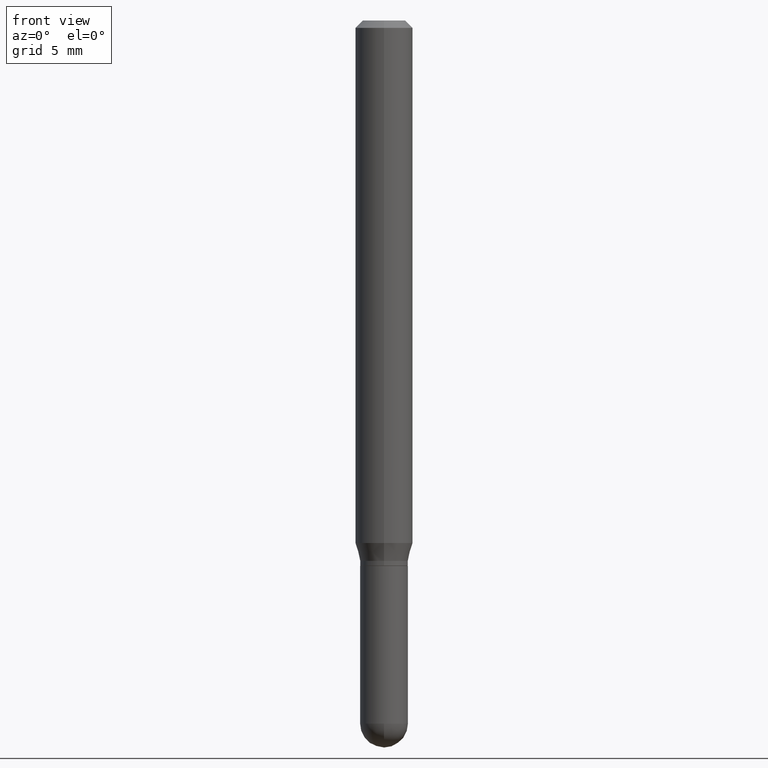
[diagram: clean part render]
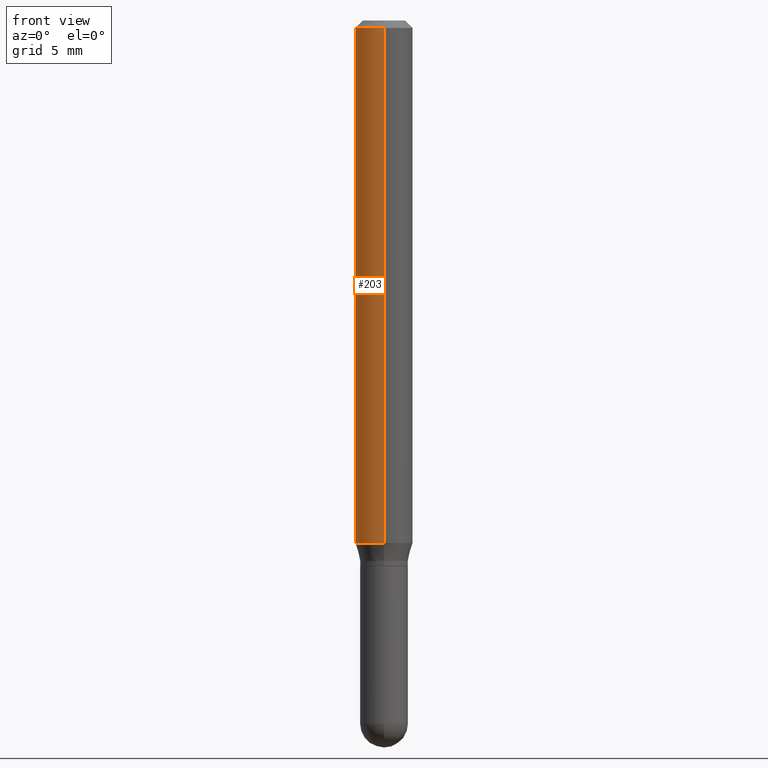
[diagram: same view with one face highlighted and labeled with its STEP entity id]
A machine part, front view. The second image highlights one B-rep face of the part: STEP entity #203.
In plain terms, the highlighted cylindrical surface (edge-blend (fillet) strip) has radius 1.4999 mm, axis along (-0, 0, 1).
Its self-contained STEP definition (entity closure, byte-faithful):
#5 = AXIS2_PLACEMENT_3D ( 'NONE', #15, #334, #19 ) ;
#15 = CARTESIAN_POINT ( 'NONE',  ( 0.000000000000000000, 0.000000000000000000, 0.000000000000000000 ) ) ;
#16 = CIRCLE ( 'NONE', #159, 0.05904999999999999832 ) ;
#19 = DIRECTION ( 'NONE',  ( -6.982962677686265922E-15, -1.000000000000000000, 3.492283521223846478E-15 ) ) ;
#27 = ORIENTED_EDGE ( 'NONE', *, *, #301, .F. ) ;
#35 = CARTESIAN_POINT ( 'NONE',  ( 4.195754854663652789E-16, 0.05904999999999623744, -1.075339299545447380 ) ) ;
#37 = DIRECTION ( 'NONE',  ( -6.982962677686265922E-15, -1.000000000000000000, 4.626330217890369336E-15 ) ) ;
#56 = CARTESIAN_POINT ( 'NONE',  ( -4.123439461173478031E-16, -0.05905000000000376614, -1.075339299545447158 ) ) ;
#107 = CARTESIAN_POINT ( 'NONE',  ( -4.123439461173740327E-16, -0.05905000000000000526, 2.062193419282681496E-16 ) ) ;
#135 = CARTESIAN_POINT ( 'NONE',  ( 3.667362967833886328E-31, -5.238425281835698892E-17, -0.01499999999999979995 ) ) ;
#139 = AXIS2_PLACEMENT_3D ( 'NONE', #135, #244, #448 ) ;
#159 = AXIS2_PLACEMENT_3D ( 'NONE', #232, #459, #37 ) ;
#177 = VERTEX_POINT ( 'NONE', #292 ) ;
#178 = EDGE_LOOP ( 'NONE', ( #201, #231, #443, #27 ) ) ;
#201 = ORIENTED_EDGE ( 'NONE', *, *, #455, .F. ) ;
#203 = ADVANCED_FACE ( 'NONE', ( #488 ), #374, .T. ) ;
#228 = DIRECTION ( 'NONE',  ( -2.444908645222623477E-29, 3.492283521223846084E-15, 1.000000000000000000 ) ) ;
#231 = ORIENTED_EDGE ( 'NONE', *, *, #401, .T. ) ;
#232 = CARTESIAN_POINT ( 'NONE',  ( 2.629106350006304297E-29, -3.755389715526958811E-15, -1.075339299545447158 ) ) ;
#244 = DIRECTION ( 'NONE',  ( -2.444908645222623477E-29, 3.492283521223846478E-15, 1.000000000000000000 ) ) ;
#262 = CARTESIAN_POINT ( 'NONE',  ( -4.123439461173737369E-16, -0.05905000000000006771, -0.01499999999999959178 ) ) ;
#292 = CARTESIAN_POINT ( 'NONE',  ( 4.195754854663657226E-16, 0.05904999999999996363, -0.01500000000000000638 ) ) ;
#301 = EDGE_CURVE ( 'NONE', #177, #438, #369, .T. ) ;
#313 = LINE ( 'NONE', #430, #463 ) ;
#322 = VECTOR ( 'NONE', #434, 39.37007874015748143 ) ;
#334 = DIRECTION ( 'NONE',  ( -2.444908645222623477E-29, 3.492283521223846478E-15, 1.000000000000000000 ) ) ;
#369 = CIRCLE ( 'NONE', #139, 0.05905000000000001914 ) ;
#371 = VERTEX_POINT ( 'NONE', #56 ) ;
#374 = CYLINDRICAL_SURFACE ( 'NONE', #5, 0.05905000000000000526 ) ;
#397 = LINE ( 'NONE', #107, #322 ) ;
#401 = EDGE_CURVE ( 'NONE', #427, #371, #16, .T. ) ;
#419 = EDGE_CURVE ( 'NONE', #371, #438, #397, .T. ) ;
#427 = VERTEX_POINT ( 'NONE', #35 ) ;
#430 = CARTESIAN_POINT ( 'NONE',  ( 4.195754854663391478E-16, 0.05905000000000000526, -2.062193419282681496E-16 ) ) ;
#434 = DIRECTION ( 'NONE',  ( -2.444908645222623477E-29, 3.492283521223846084E-15, 1.000000000000000000 ) ) ;
#438 = VERTEX_POINT ( 'NONE', #262 ) ;
#443 = ORIENTED_EDGE ( 'NONE', *, *, #419, .T. ) ;
#448 = DIRECTION ( 'NONE',  ( -6.982962677686265922E-15, -1.000000000000000000, 3.505890868245044514E-15 ) ) ;
#455 = EDGE_CURVE ( 'NONE', #427, #177, #313, .T. ) ;
#459 = DIRECTION ( 'NONE',  ( -2.444908645222623477E-29, 3.492283521223846478E-15, 1.000000000000000000 ) ) ;
#463 = VECTOR ( 'NONE', #228, 39.37007874015748143 ) ;
#488 = FACE_OUTER_BOUND ( 'NONE', #178, .T. ) ;